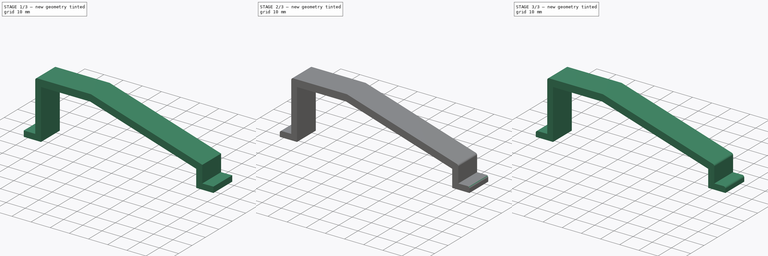
[diagram: build sequence overview — one tinted view per stage of 3, left to right]
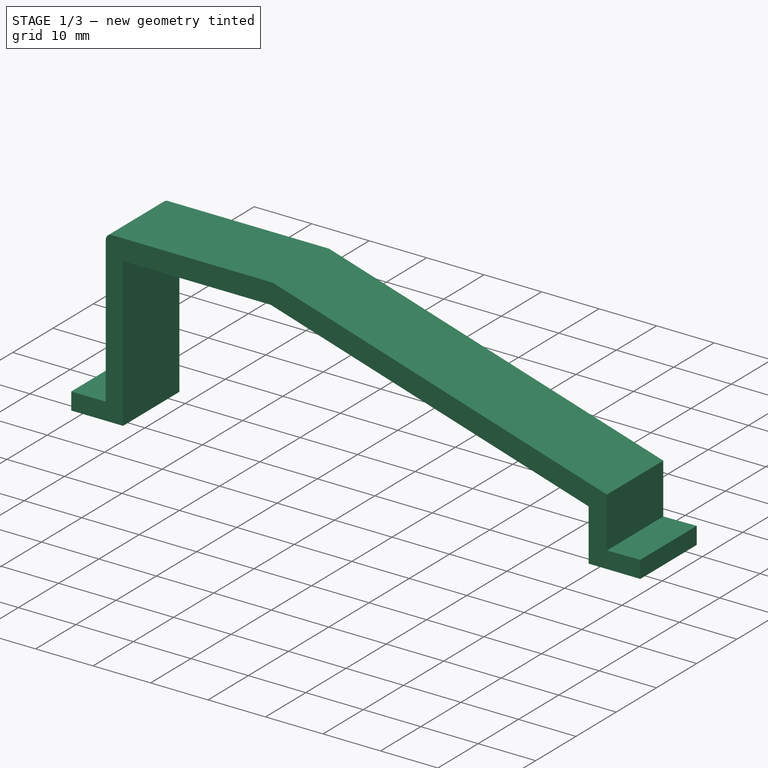
[diagram: stage 1 of 3 — iso view after this stage's code; geometry added in this stage tinted green]
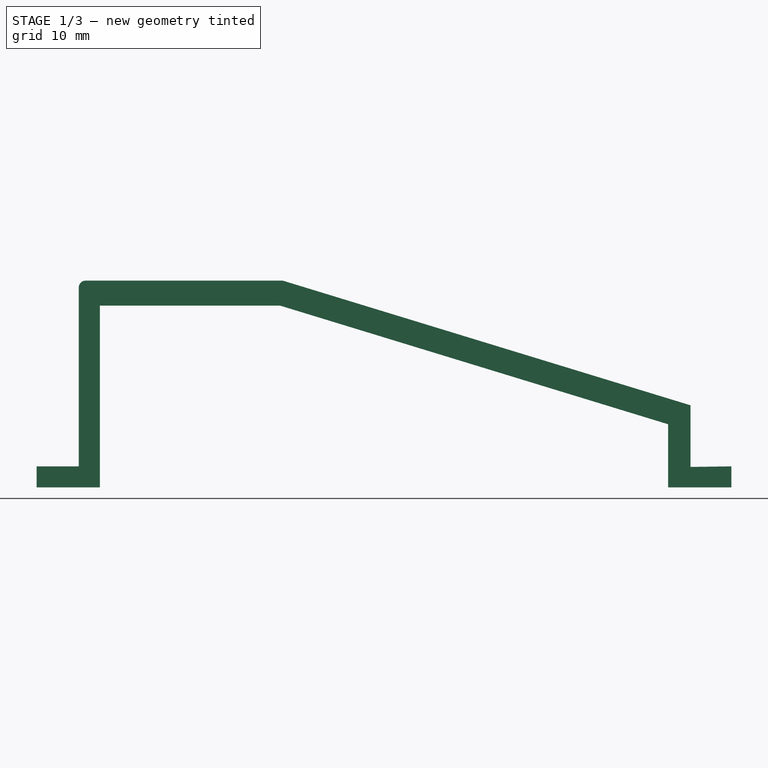
[diagram: stage 1 of 3 — front view after this stage's code; geometry added in this stage tinted green]
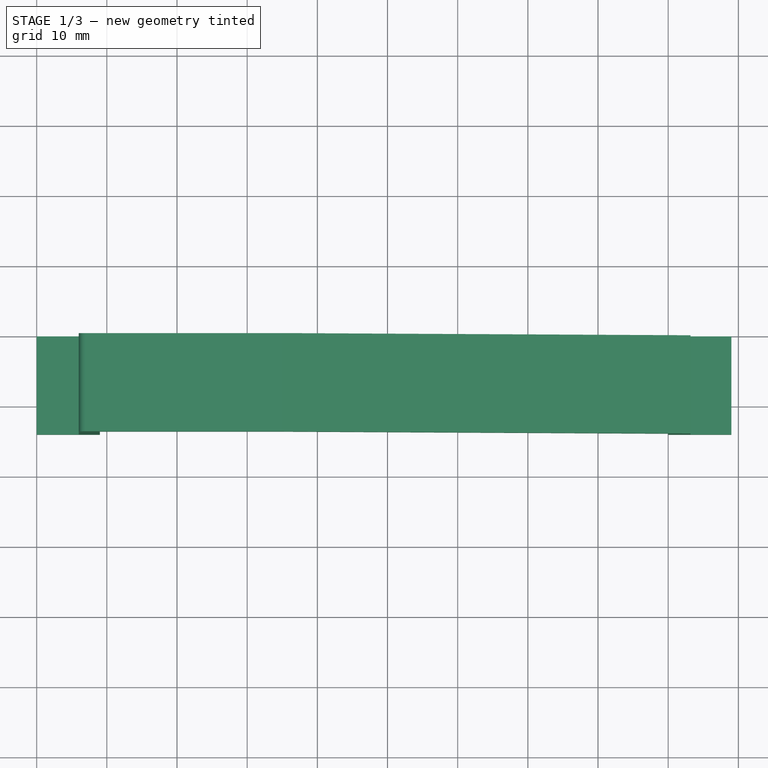
[diagram: stage 1 of 3 — top view after this stage's code; geometry added in this stage tinted green]
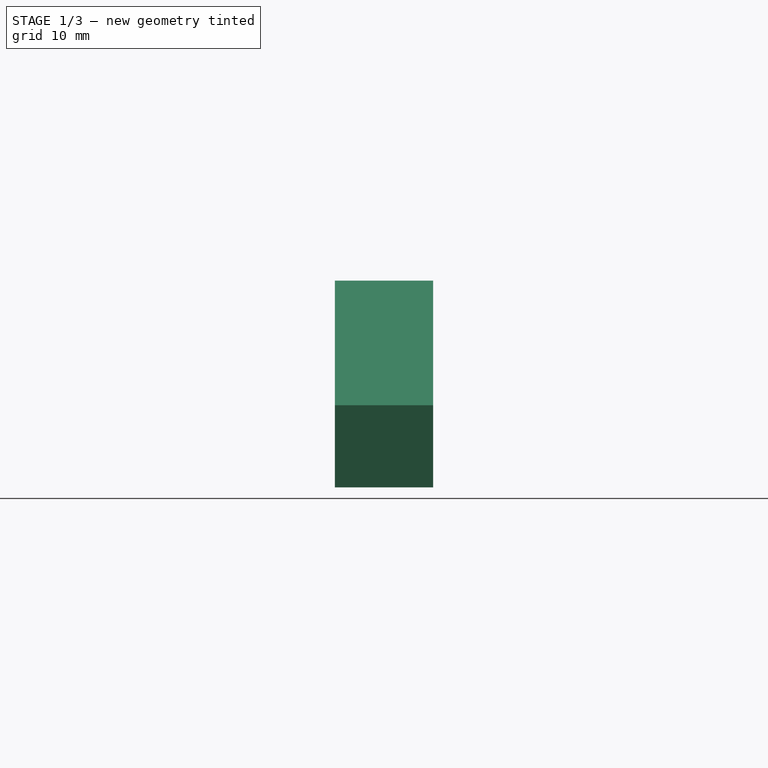
[diagram: stage 1 of 3 — right view after this stage's code; geometry added in this stage tinted green]
FCSTD DOCUMENT  (FreeCAD 0.18R4 (GitTag))
Label: ISDT Q6 Holder
License: All rights reserved
LicenseURL: http://en.wikipedia.org/wiki/All_rights_reserved
objects: Part::Fillet×4, Sketcher::SketchObject×1, PartDesign::Pad×1, PartDesign::Body×1
note: 8 computed .brp shape members not serialized (recipe doc carries the construction recipe); baked Part::Feature solids carry a one-line shape summary decoded from their .brp

FEATURE [Sketcher::SketchObject] Sketch
  MapMode = 5
  Placement = pos=(0,0,0) rot=(1,0,0;1.5708rad)
  Support = -> [XZ_Plane]
  sketch-geometry (14):
    g0: LineSegment StartX=0 StartY=0 StartZ=0 EndX=9 EndY=0 EndZ=0
    g1: LineSegment StartX=9 StartY=0 StartZ=0 EndX=9 EndY=25.9103 EndZ=0
    g2: LineSegment StartX=9 StartY=25.9103 StartZ=0 EndX=34.6888 EndY=25.9103 EndZ=0
    g3: LineSegment StartX=34.6888 StartY=25.9103 StartZ=0 EndX=90 EndY=9 EndZ=0
    g4: LineSegment StartX=90 StartY=1e-06 StartZ=0 EndX=90 EndY=9 EndZ=0
    g5: LineSegment StartX=90 StartY=1e-06 StartZ=0 EndX=99 EndY=1e-06 EndZ=0
    g6: LineSegment StartX=99 StartY=1e-06 StartZ=0 EndX=99 EndY=3 EndZ=0
    g7: LineSegment StartX=99 StartY=3 StartZ=0 EndX=93.1845 EndY=2.92284 EndZ=0
    g8: LineSegment StartX=0 StartY=0 StartZ=0 EndX=0 EndY=3 EndZ=0
    g9: LineSegment StartX=0 StartY=3 StartZ=0 EndX=6 EndY=3 EndZ=0
    g10: LineSegment StartX=6 StartY=3 StartZ=0 EndX=6 EndY=29.4783 EndZ=0
    g11: LineSegment StartX=6 StartY=29.4783 StartZ=0 EndX=35.0504 EndY=29.4783 EndZ=0
    g12: LineSegment StartX=93.1845 StartY=2.92284 StartZ=0 EndX=93.1845 EndY=11.705 EndZ=0
    g13: LineSegment StartX=35.0504 StartY=29.4783 StartZ=0 EndX=93.1845 EndY=11.705 EndZ=0
  constraints (36):
    c: Coincident(g0,g1)
    c: Coincident(g1,g2)
    c: Coincident(g2,g3)
    c: Horizontal(g0)
    c: Vertical(g1)
    c: Horizontal(g2)
    c: Angle(g3) = -0.296706
    c: Vertical(g4)
    c: Horizontal(g5)
    c: Coincident(g4,g5)
    c: Vertical(g6)
    c: Coincident(g5,g6)
    c: Coincident(g6,g7)
    c: Coincident(g0,g-1)
    c: DistanceX(g0,g0) = 9
    c: DistanceX(g5,g5) = 9
    c: DistanceY(g6,g6) = 3
    c: Coincident(g3,g4)
    c: Coincident(g8,g9)
    c: Coincident(g9,g10)
    c: Coincident(g0,g8)
    c: Vertical(g8)
    c: Horizontal(g9)
    c: DistanceY(g8,g8) = 3
    c: DistanceX(g9,g9) = 6
    c: Vertical(g10)
    c: Horizontal(g11)
    c: Coincident(g7,g12)
    c: DistanceX(g7,g7) = 5.8155
    c: Vertical(g12)
    c: Coincident(g10,g11)
    c: Coincident(g11,g13)
    c: Coincident(g12,g13)
    c: Angle(g13) = -0.296706
    c: DistanceY(g4,g4) = 9
    c: DistanceX(g0,g4) = 81
FEATURE [PartDesign::Pad] Pad
  Length = 14
  Length2 = 100
  Placement = pos=(0,0,0) rot=(1,0,0;1.5708rad)
  Profile = -> Sketch
  Type = 0
FEATURE [PartDesign::Body] Body
  Group = -> [Sketch,Pad]
  Origin = -> Origin
  Tip = -> Pad
FEATURE [Part::Fillet] Fillet
  Base = -> Pad
  Edges = 1 edges r=1: [Edge32]
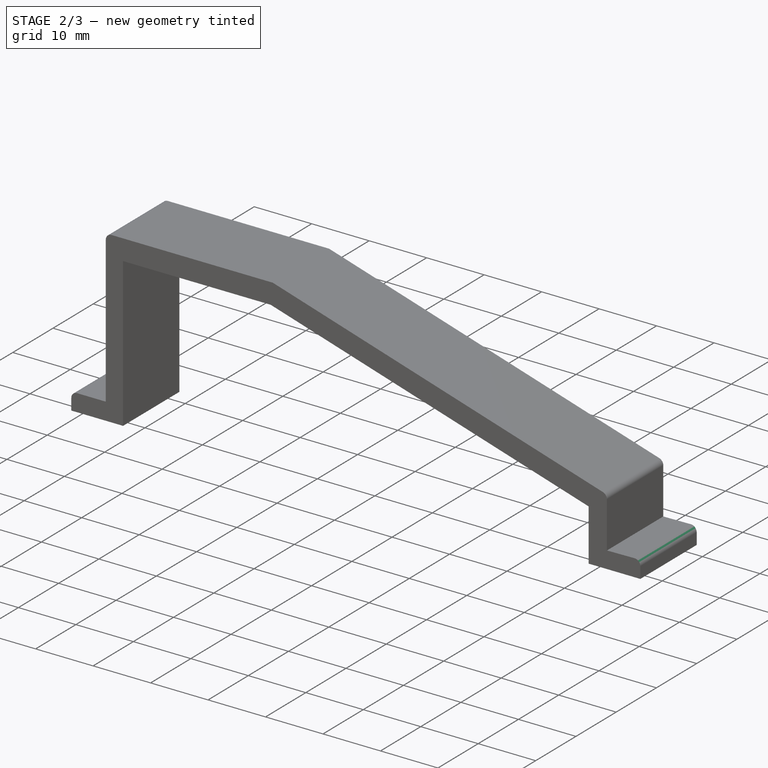
[diagram: stage 2 of 3 — iso view after this stage's code; geometry added in this stage tinted green]
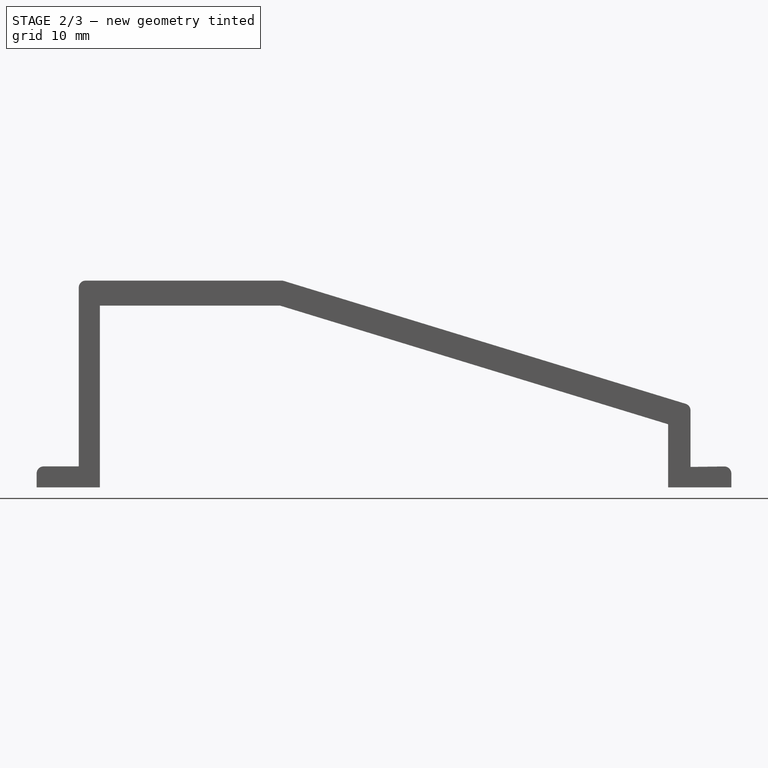
[diagram: stage 2 of 3 — front view after this stage's code; geometry added in this stage tinted green]
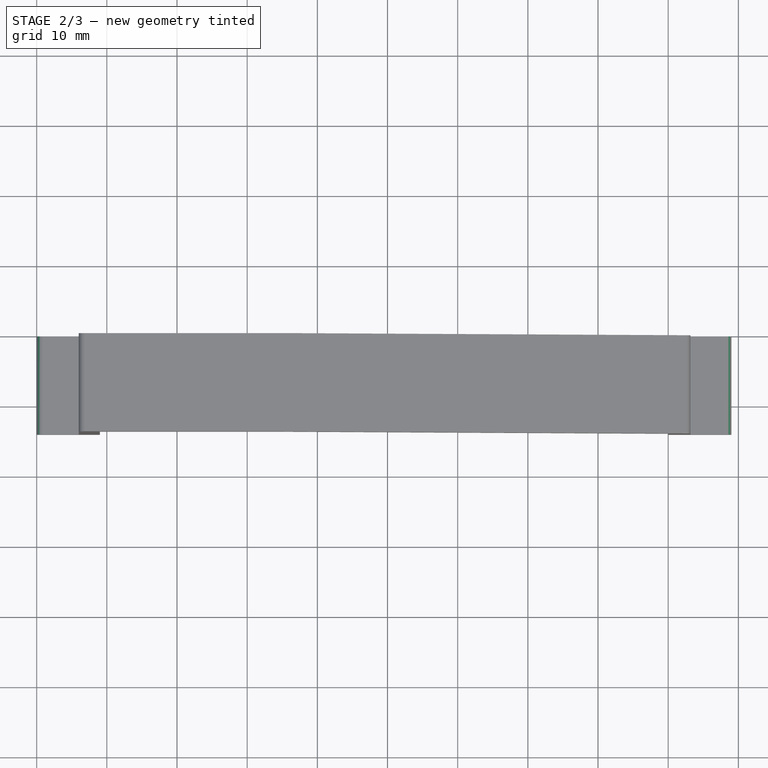
[diagram: stage 2 of 3 — top view after this stage's code; geometry added in this stage tinted green]
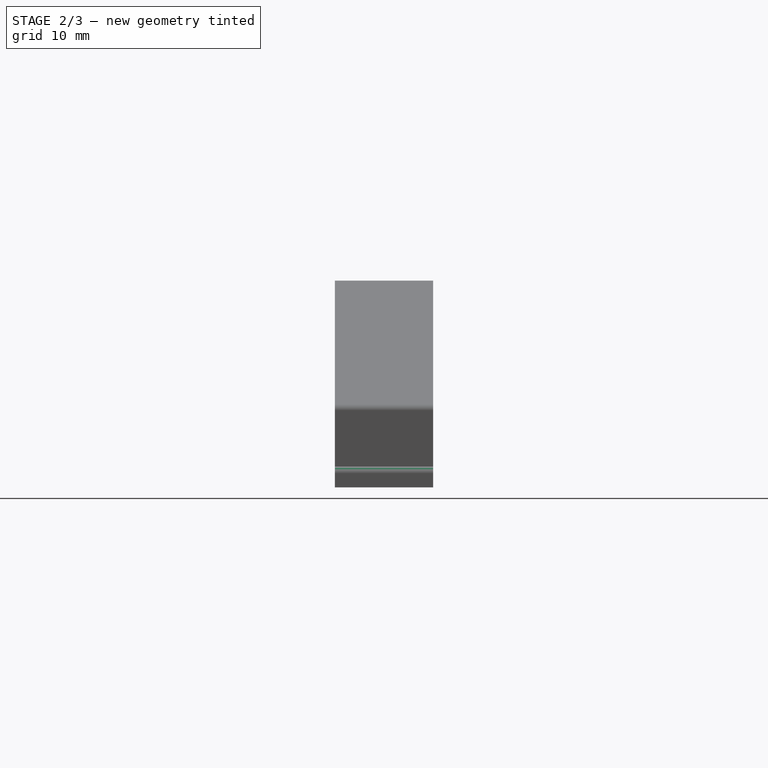
[diagram: stage 2 of 3 — right view after this stage's code; geometry added in this stage tinted green]
FEATURE [Part::Fillet] Fillet001
  Base = -> Fillet
  Edges = 3 edges r=1: [Edge21,Edge37,Edge38]
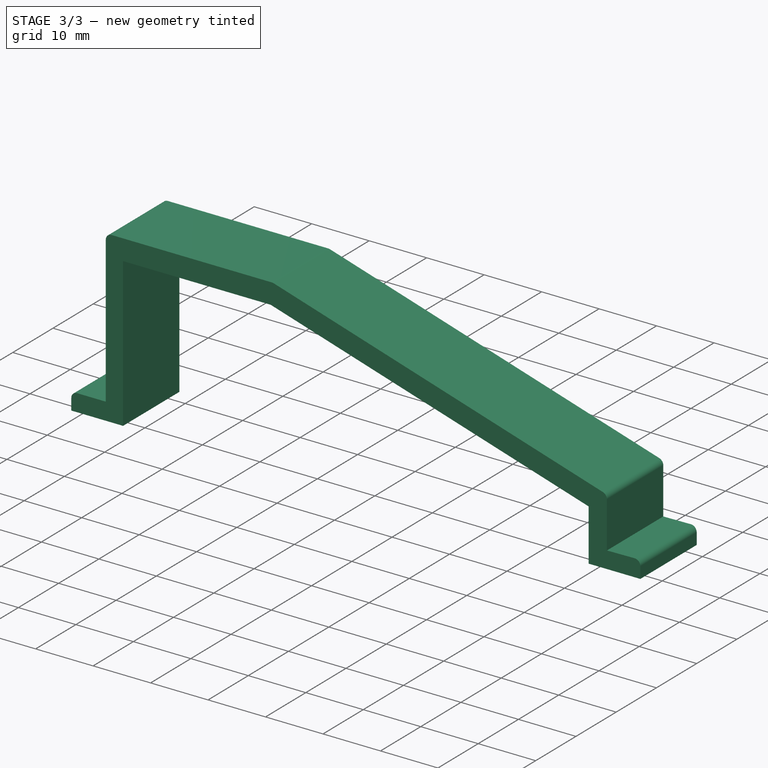
[diagram: stage 3 of 3 — iso view after this stage's code; geometry added in this stage tinted green]
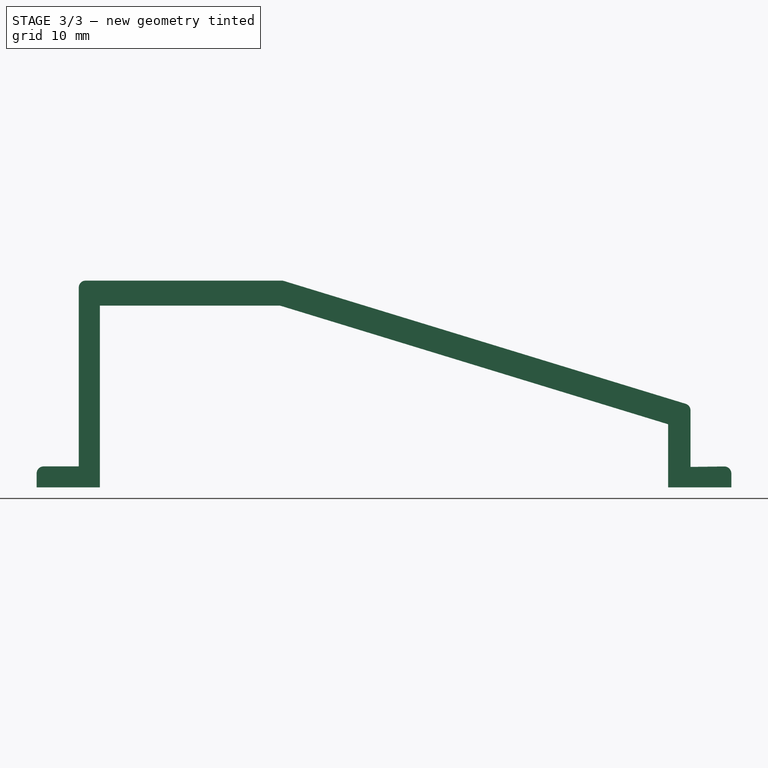
[diagram: stage 3 of 3 — front view after this stage's code; geometry added in this stage tinted green]
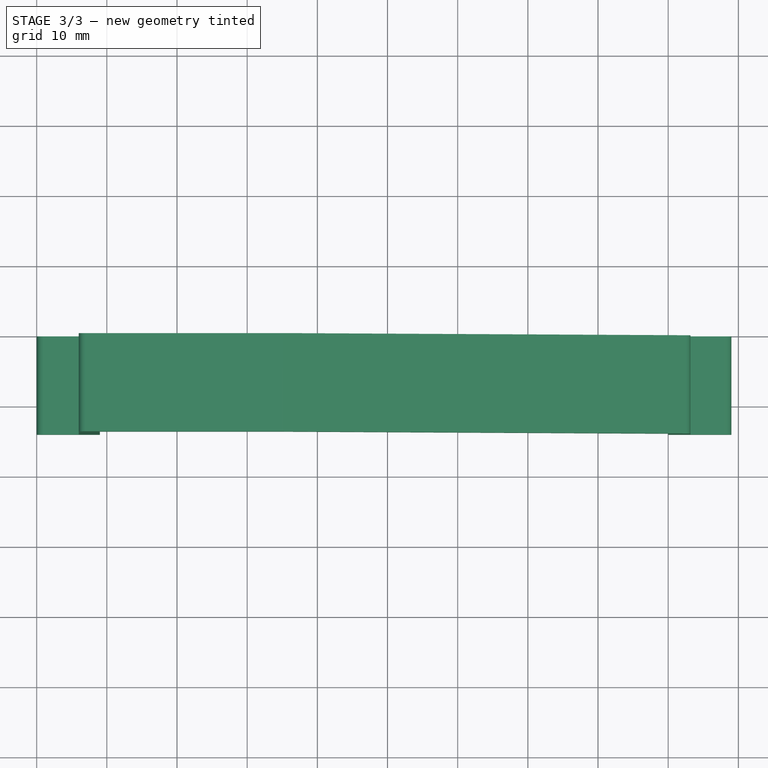
[diagram: stage 3 of 3 — top view after this stage's code; geometry added in this stage tinted green]
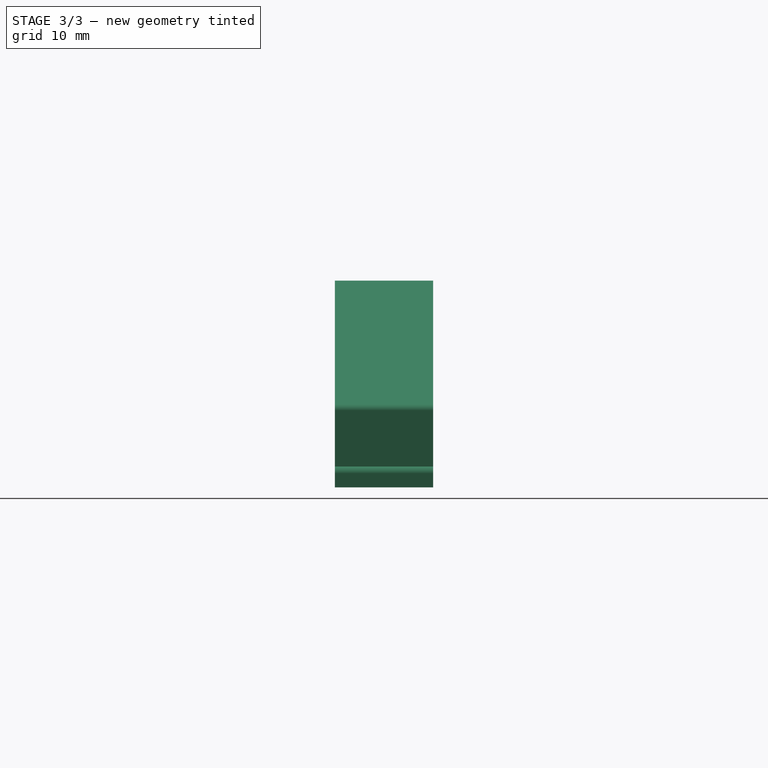
[diagram: stage 3 of 3 — right view after this stage's code; geometry added in this stage tinted green]
FEATURE [Part::Fillet] Fillet002
  Base = -> Fillet001
  Edges = 1 edges r=1: [Edge20]
FEATURE [Part::Fillet] Fillet003
  Base = -> Fillet002
  Edges = 1 edges r=1: [Edge53]
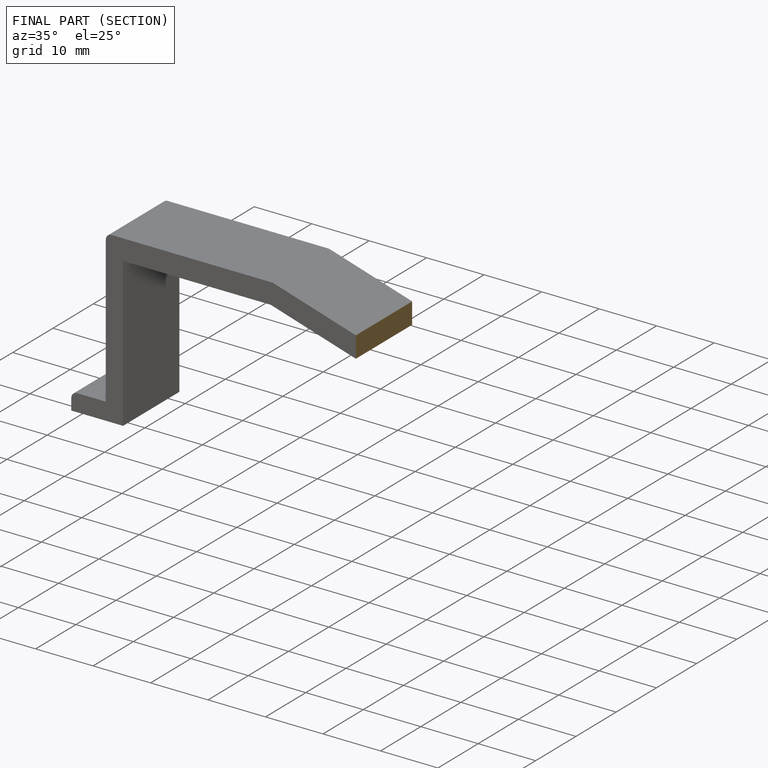
[diagram: finished part — half-section view (interior)]
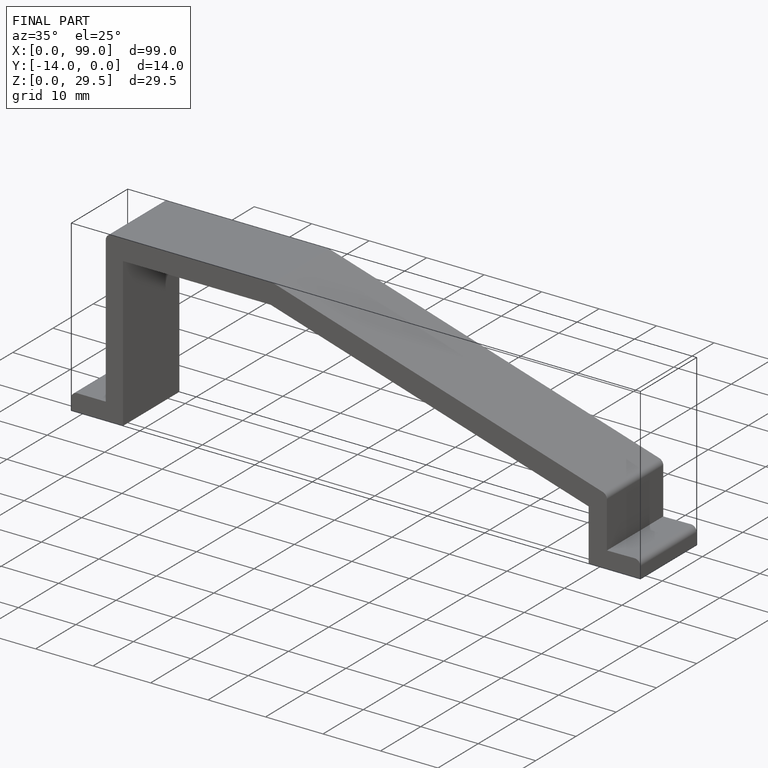
[diagram: finished part — iso view with bounding-box wireframe]
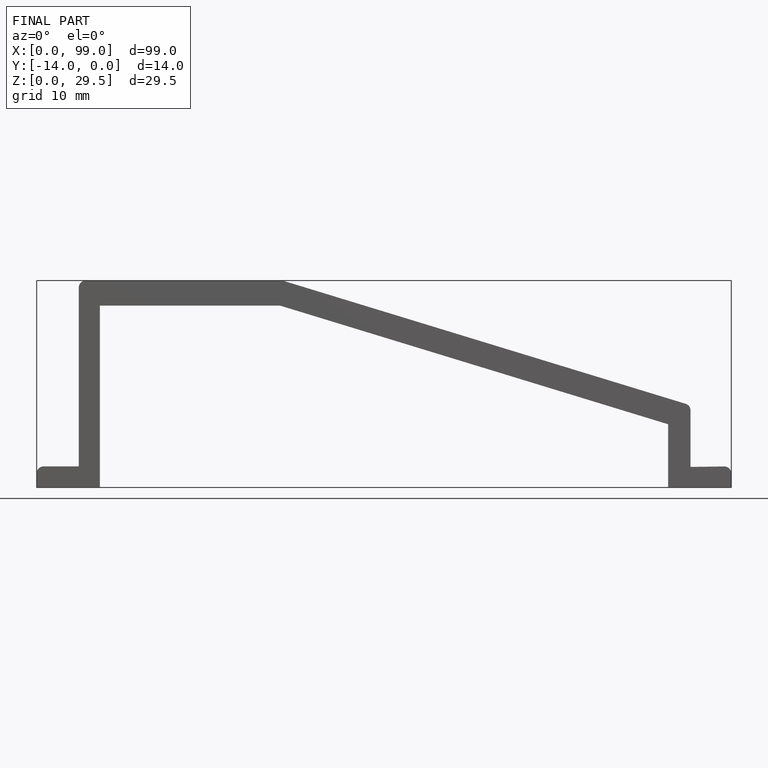
[diagram: finished part — front view with bounding-box wireframe]
